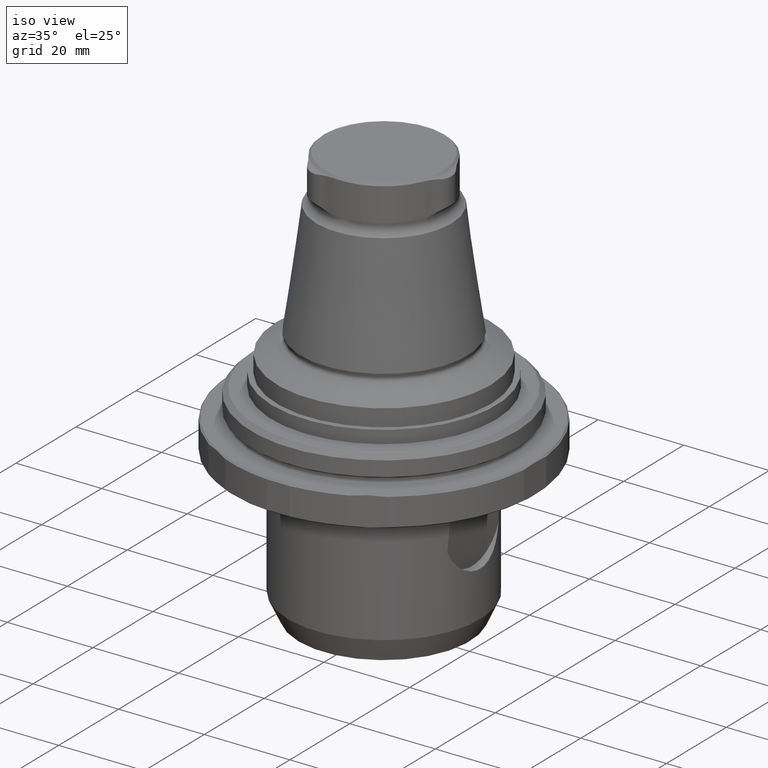
[diagram: clean part render]
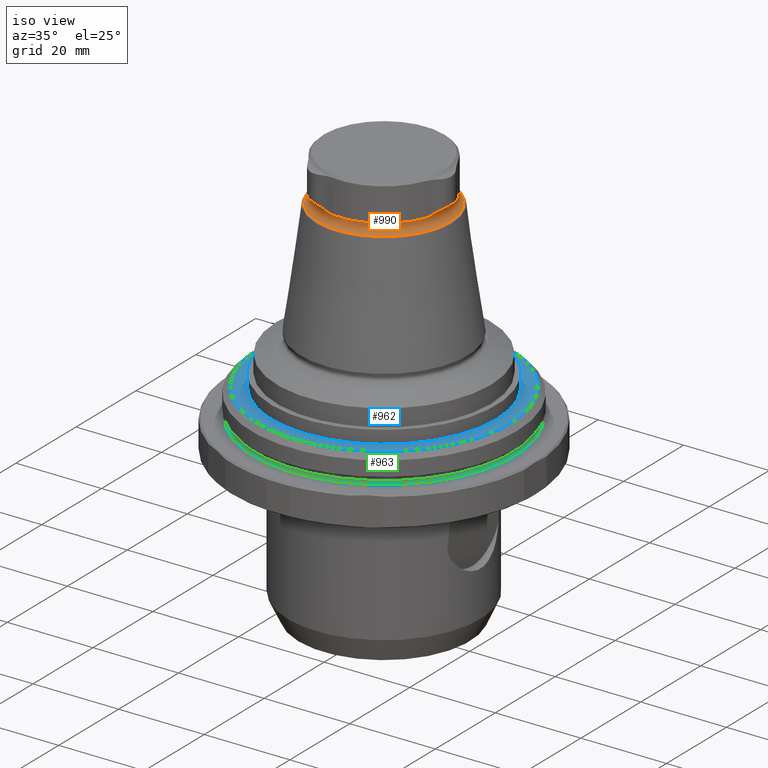
[diagram: same view with three faces highlighted in distinct colors, each labeled with its STEP entity id]
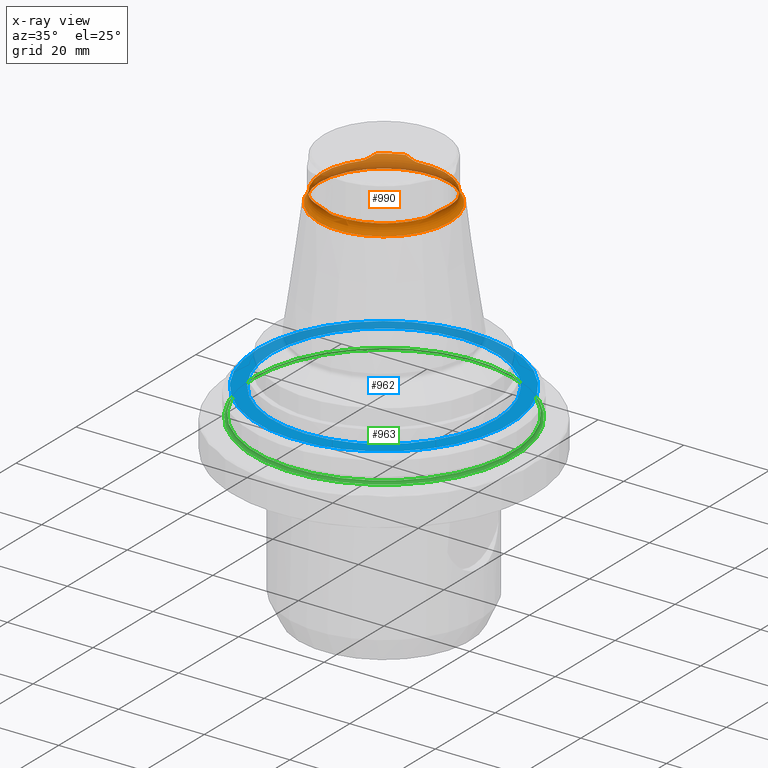
[diagram: x-ray of the same camera — body ghosted, the three highlighted faces saturated]
A machine part, iso view with three faces highlighted in distinct colors.
The next image is the same camera in x-ray (body ghosted, the three faces saturated) — at least one of them is partly hidden behind the body in this view.
Their STEP definitions:

[orange] entity #990 — the highlighted toroidal blend (fillet) surface has major radius 16.4 mm and minor (blend) radius 2 mm.
#23=TOROIDAL_SURFACE('',#1119,16.4,2.);
#100=CIRCLE('',#1099,14.5);
#101=CIRCLE('',#1102,15.1144247806269);
#102=CIRCLE('',#1106,14.5);
#103=CIRCLE('',#1109,15.1144247806269);
#104=CIRCLE('',#1113,14.5);
#105=CIRCLE('',#1116,15.1144247806269);
#106=CIRCLE('',#1120,15.4);
#146=B_SPLINE_CURVE_WITH_KNOTS('',3,(#1747,#1748,#1749,#1750,#1751),
 .UNSPECIFIED.,.F.,.F.,(4,1,4),(2.3253959497874E-7,0.0015389400940897,0.00307764764858442),
 .UNSPECIFIED.);
#148=B_SPLINE_CURVE_WITH_KNOTS('',3,(#1765,#1766,#1767,#1768),
 .UNSPECIFIED.,.F.,.F.,(4,4),(0.00622155540779305,0.00622754949232766),
 .UNSPECIFIED.);
#149=B_SPLINE_CURVE_WITH_KNOTS('',3,(#1769,#1770,#1771,#1772),
 .UNSPECIFIED.,.F.,.F.,(4,4),(2.1221164720392E-7,6.21085284075806E-6),
 .UNSPECIFIED.);
#150=B_SPLINE_CURVE_WITH_KNOTS('',3,(#1776,#1777,#1778,#1779,#1780),
 .UNSPECIFIED.,.F.,.F.,(4,1,4),(1.98303930943962E-7,0.00153324672622609,
0.00306629514852124),.UNSPECIFIED.);
#151=B_SPLINE_CURVE_WITH_KNOTS('',3,(#1788,#1789,#1790,#1791,#1792),
 .UNSPECIFIED.,.F.,.F.,(4,1,4),(2.57032852111142E-7,0.00153896376344887,
0.00307767049404562),.UNSPECIFIED.);
#153=B_SPLINE_CURVE_WITH_KNOTS('',3,(#1806,#1807,#1808,#1809),
 .UNSPECIFIED.,.F.,.F.,(4,4),(6.19763373146291E-7,6.61840456632411E-6),
 .UNSPECIFIED.);
#154=B_SPLINE_CURVE_WITH_KNOTS('',3,(#1810,#1811,#1812,#1813),
 .UNSPECIFIED.,.F.,.F.,(4,4),(2.57948989344727E-7,6.25659018116285E-6),
 .UNSPECIFIED.);
#155=B_SPLINE_CURVE_WITH_KNOTS('',3,(#1817,#1818,#1819,#1820,#1821),
 .UNSPECIFIED.,.F.,.F.,(4,1,4),(2.11842187331082E-7,0.0015332601506275,
0.00306630845906767),.UNSPECIFIED.);
#156=B_SPLINE_CURVE_WITH_KNOTS('',3,(#1829,#1830,#1831,#1832,#1833),
 .UNSPECIFIED.,.F.,.F.,(4,1,4),(2.11460452280959E-7,0.00153891768004006,
0.00307762389962784),.UNSPECIFIED.);
#158=B_SPLINE_CURVE_WITH_KNOTS('',3,(#1847,#1848,#1849,#1850),
 .UNSPECIFIED.,.F.,.F.,(4,4),(0.00622861034463852,0.00623459694737962),
 .UNSPECIFIED.);
#159=B_SPLINE_CURVE_WITH_KNOTS('',3,(#1851,#1852,#1853,#1854),
 .UNSPECIFIED.,.F.,.F.,(4,4),(2.33364163493583E-7,6.23200535773929E-6),
 .UNSPECIFIED.);
#160=B_SPLINE_CURVE_WITH_KNOTS('',3,(#1856,#1857,#1858,#1859,#1860),
 .UNSPECIFIED.,.F.,.F.,(4,1,4),(2.49139269261998E-7,0.00153329683370227,
0.00306634452813528),.UNSPECIFIED.);
#377=ORIENTED_EDGE('',*,*,#549,.F.);
#378=ORIENTED_EDGE('',*,*,#548,.T.);
#379=ORIENTED_EDGE('',*,*,#547,.T.);
#380=ORIENTED_EDGE('',*,*,#543,.T.);
#381=ORIENTED_EDGE('',*,*,#546,.T.);
#382=ORIENTED_EDGE('',*,*,#542,.T.);
#383=ORIENTED_EDGE('',*,*,#540,.T.);
#384=ORIENTED_EDGE('',*,*,#538,.T.);
#385=ORIENTED_EDGE('',*,*,#536,.T.);
#386=ORIENTED_EDGE('',*,*,#532,.T.);
#387=ORIENTED_EDGE('',*,*,#535,.T.);
#388=ORIENTED_EDGE('',*,*,#531,.T.);
#389=ORIENTED_EDGE('',*,*,#529,.T.);
#390=ORIENTED_EDGE('',*,*,#527,.T.);
#391=ORIENTED_EDGE('',*,*,#525,.T.);
#392=ORIENTED_EDGE('',*,*,#521,.T.);
#393=ORIENTED_EDGE('',*,*,#524,.T.);
#394=ORIENTED_EDGE('',*,*,#520,.T.);
#395=ORIENTED_EDGE('',*,*,#518,.T.);
#518=EDGE_CURVE('',#630,#631,#100,.T.);
#520=EDGE_CURVE('',#632,#630,#146,.T.);
#521=EDGE_CURVE('',#633,#634,#101,.T.);
#524=EDGE_CURVE('',#634,#632,#148,.T.);
#525=EDGE_CURVE('',#635,#633,#149,.T.);
#527=EDGE_CURVE('',#636,#635,#150,.T.);
#529=EDGE_CURVE('',#637,#636,#102,.T.);
#531=EDGE_CURVE('',#638,#637,#151,.T.);
#532=EDGE_CURVE('',#639,#640,#103,.T.);
#535=EDGE_CURVE('',#640,#638,#153,.T.);
#536=EDGE_CURVE('',#641,#639,#154,.T.);
#538=EDGE_CURVE('',#642,#641,#155,.T.);
#540=EDGE_CURVE('',#643,#642,#104,.T.);
#542=EDGE_CURVE('',#644,#643,#156,.T.);
#543=EDGE_CURVE('',#645,#646,#105,.T.);
#546=EDGE_CURVE('',#646,#644,#158,.T.);
#547=EDGE_CURVE('',#647,#645,#159,.T.);
#548=EDGE_CURVE('',#631,#647,#160,.T.);
#549=EDGE_CURVE('',#648,#648,#106,.T.);
#630=VERTEX_POINT('',#1740);
#631=VERTEX_POINT('',#1742);
#632=VERTEX_POINT('',#1746);
#633=VERTEX_POINT('',#1754);
#634=VERTEX_POINT('',#1755);
#635=VERTEX_POINT('',#1764);
#636=VERTEX_POINT('',#1775);
#637=VERTEX_POINT('',#1783);
#638=VERTEX_POINT('',#1787);
#639=VERTEX_POINT('',#1795);
#640=VERTEX_POINT('',#1796);
#641=VERTEX_POINT('',#1805);
#642=VERTEX_POINT('',#1816);
#643=VERTEX_POINT('',#1824);
#644=VERTEX_POINT('',#1828);
#645=VERTEX_POINT('',#1836);
#646=VERTEX_POINT('',#1837);
#647=VERTEX_POINT('',#1846);
#648=VERTEX_POINT('',#1863);
#788=EDGE_LOOP('',(#377));
#789=EDGE_LOOP('',(#378,#379,#380,#381,#382,#383,#384,#385,#386,#387,#388,
#389,#390,#391,#392,#393,#394,#395));
#884=FACE_BOUND('',#788,.T.);
#885=FACE_BOUND('',#789,.T.);
#990=ADVANCED_FACE('',(#884,#885),#23,.F.);
#1099=AXIS2_PLACEMENT_3D('',#1743,#1329,#1330);
#1102=AXIS2_PLACEMENT_3D('',#1753,#1336,#1337);
#1106=AXIS2_PLACEMENT_3D('',#1784,#1347,#1348);
#1109=AXIS2_PLACEMENT_3D('',#1794,#1354,#1355);
#1113=AXIS2_PLACEMENT_3D('',#1825,#1365,#1366);
#1116=AXIS2_PLACEMENT_3D('',#1835,#1372,#1373);
#1119=AXIS2_PLACEMENT_3D('',#1861,#1379,#1380);
#1120=AXIS2_PLACEMENT_3D('',#1862,#1381,#1382);
#1329=DIRECTION('',(-4.38328612912168E-16,-8.51929322185263E-24,-1.));
#1330=DIRECTION('',(-1.,9.77164313006873E-16,4.38328610599545E-16));
#1336=DIRECTION('',(-4.38328612912168E-16,-8.51929322185263E-24,-1.));
#1337=DIRECTION('',(-1.,9.77164313006873E-16,4.38328610599545E-16));
#1347=DIRECTION('',(-4.38328612912168E-16,-8.51929322185263E-24,-1.));
#1348=DIRECTION('',(-1.,9.77164313006873E-16,4.38328610599545E-16));
#1354=DIRECTION('',(-4.38328612912168E-16,-8.51929322185263E-24,-1.));
#1355=DIRECTION('',(-1.,9.77164313006873E-16,4.38328610599545E-16));
#1365=DIRECTION('',(-4.38328612912168E-16,-8.51929322185263E-24,-1.));
#1366=DIRECTION('',(-1.,9.77164313006873E-16,4.38328610599545E-16));
#1372=DIRECTION('',(-4.38328612912168E-16,-8.51929322185263E-24,-1.));
#1373=DIRECTION('',(-1.,9.77164313006873E-16,4.38328610599545E-16));
#1379=DIRECTION('',(-4.38328612912168E-16,-8.51929322185263E-24,-1.));
#1380=DIRECTION('',(-1.,9.77164313006873E-16,4.38328610599545E-16));
#1381=DIRECTION('',(-4.38328612912168E-16,-8.51929322185263E-24,-1.));
#1382=DIRECTION('',(-1.,9.77164313006873E-16,4.38328610599545E-16));
#1740=CARTESIAN_POINT('',(-11.4297801108245,-8.92245070696412,46.6780044888597));
#1742=CARTESIAN_POINT('',(-11.4297801108242,8.92245070696371,46.6780044888626));
#1743=CARTESIAN_POINT('',(-6.82790461535123E-14,-9.81645347706665E-14,46.6780044888626));
#1746=CARTESIAN_POINT('',(-9.89976921547157,-11.4179951797517,47.5836531554482));
#1747=CARTESIAN_POINT('',(-9.89976921547149,-11.4179951797516,47.5836531554482));
#1748=CARTESIAN_POINT('',(-10.1059201587806,-10.976867121887,47.4167929741393));
#1749=CARTESIAN_POINT('',(-10.554358847367,-10.1424507187893,47.0361424330323));
#1750=CARTESIAN_POINT('',(-11.1105799262753,-9.3313504633795,46.678004488855));
#1751=CARTESIAN_POINT('',(-11.4297801108226,-8.92245070696355,46.6780044888548));
#1753=CARTESIAN_POINT('',(-6.69052635934294E-14,-9.81645347629345E-14,47.5855935752607));
#1754=CARTESIAN_POINT('',(-4.9440444993606,-14.2829359880094,47.5855935752607));
#1755=CARTESIAN_POINT('',(-9.89736315656183,-11.4231361278926,47.5855935752607));
#1764=CARTESIAN_POINT('',(-4.93838927821661,-14.2824492220778,47.5836531554483));
#1765=CARTESIAN_POINT('',(-9.89736315656183,-11.4231361278926,47.5855935752607));
#1766=CARTESIAN_POINT('',(-9.89816627519147,-11.4214226642802,47.5849482311036));
#1767=CARTESIAN_POINT('',(-9.8989684047252,-11.4197087789407,47.5843013379119));
#1768=CARTESIAN_POINT('',(-9.89976921547157,-11.4179951797517,47.5836531554482));
#1769=CARTESIAN_POINT('',(-4.93838927821662,-14.2824492220778,47.5836531554483));
#1770=CARTESIAN_POINT('',(-4.94027378220326,-14.2826125059966,47.5843013648048));
#1771=CARTESIAN_POINT('',(-4.94215885657609,-14.2827747619097,47.5849481693393));
#1772=CARTESIAN_POINT('',(-4.94404449936061,-14.2829359880094,47.5855935752607));
#1775=CARTESIAN_POINT('',(-2.01217892083198,-14.3597052891257,46.6780044888626));
#1776=CARTESIAN_POINT('',(-2.01217892083233,-14.3597052891257,46.6780044888607));
#1777=CARTESIAN_POINT('',(-2.52756176568162,-14.2874863629232,46.6780044888607));
#1778=CARTESIAN_POINT('',(-3.50119874426205,-14.2118277609701,47.0344657481654));
#1779=CARTESIAN_POINT('',(-4.45266532455197,-14.2403633940976,47.4165795840098));
#1780=CARTESIAN_POINT('',(-4.9383892782166,-14.2824492220778,47.5836531554484));
#1783=CARTESIAN_POINT('',(13.4419590316585,-5.43725458216212,46.6780044888644));
#1784=CARTESIAN_POINT('',(-6.82790461535123E-14,-9.81645347706665E-14,46.6780044888626));
#1787=CARTESIAN_POINT('',(14.83815849369,-2.86445404232654,47.5836531554491));
#1788=CARTESIAN_POINT('',(14.8381584936899,-2.86445404232656,47.5836531554494));
#1789=CARTESIAN_POINT('',(14.5592060014918,-3.2635498240514,47.4167930582311));
#1790=CARTESIAN_POINT('',(14.0607998071633,-4.069116877366,47.0361429196281));
#1791=CARTESIAN_POINT('',(13.636476906111,-4.95636827091454,46.6780044888612));
#1792=CARTESIAN_POINT('',(13.4419590316577,-5.43725458216131,46.678004488861));
#1794=CARTESIAN_POINT('',(-6.69052635934294E-14,-9.81645347629345E-14,47.5855935752607));
#1795=CARTESIAN_POINT('',(14.8414076559226,2.85979986012096,47.5855935752607));
#1796=CARTESIAN_POINT('',(14.8414076559229,-2.85979986011986,47.5855935752607));
#1805=CARTESIAN_POINT('',(14.8381584936904,2.86445404232663,47.5836531554497));
#1806=CARTESIAN_POINT('',(14.8414076559229,-2.85979986011986,47.5855935752607));
#1807=CARTESIAN_POINT('',(14.8403252086261,-2.86135226163301,47.5849481693355));
#1808=CARTESIAN_POINT('',(14.8392421536976,-2.86290365597065,47.5843013648013));
#1809=CARTESIAN_POINT('',(14.83815849369,-2.86445404232658,47.5836531554492));
#1810=CARTESIAN_POINT('',(14.8381584936904,2.86445404232663,47.5836531554497));
#1811=CARTESIAN_POINT('',(14.8392421536978,2.86290365597105,47.5843013648016));
#1812=CARTESIAN_POINT('',(14.8403252086261,2.86135226163376,47.5849481693357));
#1813=CARTESIAN_POINT('',(14.8414076559226,2.85979986012096,47.5855935752607));
#1816=CARTESIAN_POINT('',(13.4419590316582,5.43725458216255,46.6780044888655));
#1817=CARTESIAN_POINT('',(13.4419590316582,5.43725458216254,46.6780044888655));
#1818=CARTESIAN_POINT('',(13.6371068531405,4.95481091838994,46.6780044888655));
#1819=CARTESIAN_POINT('',(14.0584032982657,4.07378667125613,47.034465720431));
#1820=CARTESIAN_POINT('',(14.5588491375802,3.26406038726901,47.4165795941159));
#1821=CARTESIAN_POINT('',(14.8381584936904,2.8644540423266,47.5836531554497));
#1824=CARTESIAN_POINT('',(-2.01217892083196,14.3597052891265,46.6780044888637));
#1825=CARTESIAN_POINT('',(-6.82790461535123E-14,-9.81645347706665E-14,46.6780044888626));
#1828=CARTESIAN_POINT('',(-4.9383892782157,14.2824492220786,47.5836531554488));
#1829=CARTESIAN_POINT('',(-4.93838927821567,14.2824492220785,47.5836531554489));
#1830=CARTESIAN_POINT('',(-4.45328599971568,14.2404171728506,47.4167930765007));
#1831=CARTESIAN_POINT('',(-3.50644175510599,14.2115682769748,47.0361431562619));
#1832=CARTESIAN_POINT('',(-2.52589799078184,14.2877195023031,46.6780044888607));
#1833=CARTESIAN_POINT('',(-2.01217892083231,14.3597052891259,46.6780044888607));
#1835=CARTESIAN_POINT('',(-6.69052635934294E-14,-9.81645347629345E-14,47.5855935752607));
#1836=CARTESIAN_POINT('',(-9.89736315656259,11.4231361278918,47.5855935752607));
#1837=CARTESIAN_POINT('',(-4.94404449935833,14.28293598801,47.5855935752607));
#1846=CARTESIAN_POINT('',(-9.89976921547194,11.4179951797517,47.5836531554485));
#1847=CARTESIAN_POINT('',(-4.94404449935832,14.28293598801,47.5855935752607));
#1848=CARTESIAN_POINT('',(-4.94215863661782,14.2827747431036,47.5849480940542));
#1849=CARTESIAN_POINT('',(-4.9402735622284,14.2826124869376,47.5843012891413));
#1850=CARTESIAN_POINT('',(-4.9383892782157,14.2824492220786,47.5836531554488));
#1851=CARTESIAN_POINT('',(-9.89976921547194,11.4179951797517,47.5836531554485));
#1852=CARTESIAN_POINT('',(-9.89896837150276,11.4197088500318,47.584301364803));
#1853=CARTESIAN_POINT('',(-9.89816635205902,11.4214225002831,47.5849481693375));
#1854=CARTESIAN_POINT('',(-9.89736315656259,11.4231361278918,47.5855935752607));
#1856=CARTESIAN_POINT('',(-11.4297801108241,8.92245070696387,46.6780044888616));
#1857=CARTESIAN_POINT('',(-11.1095464122082,9.33267440888899,46.6780044888616));
#1858=CARTESIAN_POINT('',(-10.5572042888355,10.1380410971447,47.0344654896771));
#1859=CARTESIAN_POINT('',(-10.1061838530727,10.9763028608224,47.4165795379235));
#1860=CARTESIAN_POINT('',(-9.89976921547192,11.4179951797516,47.5836531554486));
#1861=CARTESIAN_POINT('',(-6.855278228454E-14,-9.81645347759868E-14,46.0535046890228));
#1862=CARTESIAN_POINT('',(-6.83360294177673E-14,-9.81645347907426E-14,44.3214538814539));
#1863=CARTESIAN_POINT('',(-15.4000000000001,-8.31162043704368E-14,44.3214538814539));

[blue] entity #962 — the highlighted planar face has unit normal (-0, -0, -1).
#53=PLANE('',#1071);
#67=CIRCLE('',#1033,26.2);
#86=CIRCLE('',#1072,29.5524710292422);
#281=ORIENTED_EDGE('',*,*,#442,.F.);
#282=ORIENTED_EDGE('',*,*,#493,.F.);
#442=EDGE_CURVE('',#575,#575,#67,.T.);
#493=EDGE_CURVE('',#610,#610,#86,.T.);
#575=VERTEX_POINT('',#1500);
#610=VERTEX_POINT('',#1654);
#751=EDGE_LOOP('',(#281));
#752=EDGE_LOOP('',(#282));
#847=FACE_BOUND('',#751,.T.);
#848=FACE_BOUND('',#752,.T.);
#962=ADVANCED_FACE('',(#847,#848),#53,.F.);
#1033=AXIS2_PLACEMENT_3D('',#1499,#1179,#1180);
#1071=AXIS2_PLACEMENT_3D('',#1652,#1271,#1272);
#1072=AXIS2_PLACEMENT_3D('',#1653,#1273,#1274);
#1179=DIRECTION('',(5.5264198129461E-16,5.34134317477693E-17,1.));
#1180=DIRECTION('',(1.,-9.77164313006873E-16,-5.58279830278911E-16));
#1271=DIRECTION('',(-5.47430718319515E-16,-9.52839907700963E-18,-1.));
#1272=DIRECTION('',(-1.,8.32667268468868E-16,5.47430716006892E-16));
#1273=DIRECTION('',(-5.47430718319515E-16,-9.52839907700963E-18,-1.));
#1274=DIRECTION('',(-1.,8.32667268468868E-16,5.47430716006892E-16));
#1499=CARTESIAN_POINT('',(-8.02869289039323E-14,-9.81483671983164E-14,5.50000000000001));
#1500=CARTESIAN_POINT('',(26.1999999999999,-1.23750072199096E-13,5.49999999999999));
#1652=CARTESIAN_POINT('',(-8.53525834481953E-14,-9.81645351108283E-14,5.50000000000001));
#1653=CARTESIAN_POINT('',(-8.53525834481953E-14,-9.81645351108283E-14,5.50000000000001));
#1654=CARTESIAN_POINT('',(-29.5524710292423,-7.35571597824038E-14,5.50000000000002));

[green] entity #963 — the highlighted toroidal blend (fillet) surface has major radius 30.65 mm and minor (blend) radius 0.6 mm.
#20=TOROIDAL_SURFACE('',#1073,30.65,0.6);
#85=CIRCLE('',#1070,30.65);
#87=CIRCLE('',#1074,30.05);
#283=ORIENTED_EDGE('',*,*,#492,.F.);
#284=ORIENTED_EDGE('',*,*,#494,.T.);
#492=EDGE_CURVE('',#609,#609,#85,.T.);
#494=EDGE_CURVE('',#611,#611,#87,.T.);
#609=VERTEX_POINT('',#1651);
#611=VERTEX_POINT('',#1657);
#753=EDGE_LOOP('',(#283));
#754=EDGE_LOOP('',(#284));
#849=FACE_BOUND('',#753,.T.);
#850=FACE_BOUND('',#754,.T.);
#963=ADVANCED_FACE('',(#849,#850),#20,.F.);
#1070=AXIS2_PLACEMENT_3D('',#1650,#1269,#1270);
#1073=AXIS2_PLACEMENT_3D('',#1655,#1275,#1276);
#1074=AXIS2_PLACEMENT_3D('',#1656,#1277,#1278);
#1269=DIRECTION('',(-5.47430718319515E-16,-9.52839907700963E-18,-1.));
#1270=DIRECTION('',(-1.,8.32667268468868E-16,5.47430716006892E-16));
#1275=DIRECTION('',(-5.47430718319515E-16,-9.52839907700963E-18,-1.));
#1276=DIRECTION('',(-1.,8.32667268468868E-16,5.47430716006892E-16));
#1277=DIRECTION('',(-5.47430718319515E-16,-9.52839907700963E-18,-1.));
#1278=DIRECTION('',(-1.,8.32667268468868E-16,5.47430716006892E-16));
#1650=CARTESIAN_POINT('',(-8.89108831172721E-14,-9.82264697048288E-14,-0.999999999999996));
#1651=CARTESIAN_POINT('',(-30.6500000000001,-7.2705217926258E-14,-0.999999999999979));
#1655=CARTESIAN_POINT('',(-8.85824246862804E-14,-9.82207526653826E-14,-0.399999999999996));
#1656=CARTESIAN_POINT('',(-8.85824246862804E-14,-9.82207526653826E-14,-0.399999999999996));
#1657=CARTESIAN_POINT('',(-30.0500000000001,-7.31991012478931E-14,-0.39999999999998));